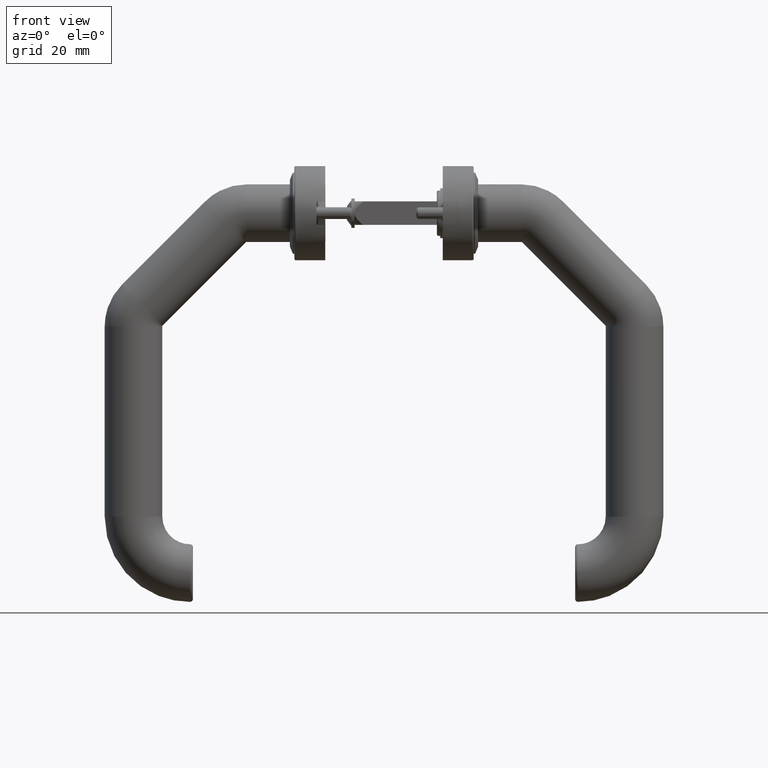
[diagram: clean part render]
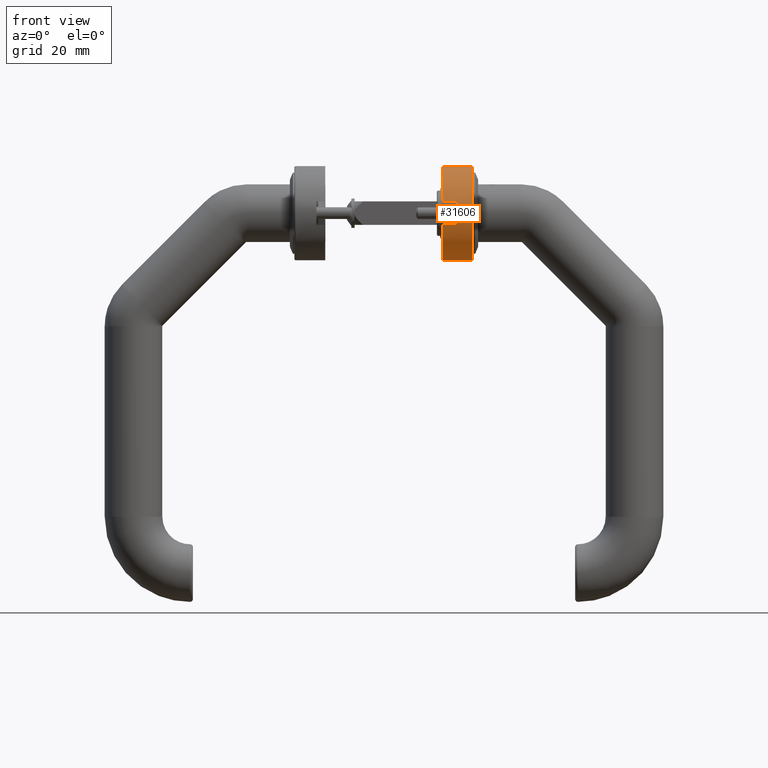
[diagram: same view with one face highlighted and labeled with its STEP entity id]
A machine part, front view. The second image highlights one B-rep face of the part: STEP entity #31606.
In plain terms, the highlighted cylindrical surface (partial cylindrical patch) has radius 16 mm, axis along (1, -0, -0).
Its self-contained STEP definition (entity closure, byte-faithful):
#2670 = CARTESIAN_POINT ( 'NONE',  ( 4.000000000000000000, -30.49193338482968230, -5.499999999999997335 ) ) ;
#2783 = DIRECTION ( 'NONE',  ( 1.000000000000000000, 0.000000000000000000, 0.000000000000000000 ) ) ;
#3510 = ORIENTED_EDGE ( 'NONE', *, *, #5690, .F. ) ;
#4168 = AXIS2_PLACEMENT_3D ( 'NONE', #21442, #20978, #10694 ) ;
#4494 = VECTOR ( 'NONE', #21200, 1000.000000000000000 ) ;
#4990 = CARTESIAN_POINT ( 'NONE',  ( 16.00000000000000711, -15.00000000000000000, -0.5000000000000038858 ) ) ;
#5690 = EDGE_CURVE ( 'NONE', #19910, #19101, #14931, .T. ) ;
#6109 = ORIENTED_EDGE ( 'NONE', *, *, #42259, .T. ) ;
#6133 = DIRECTION ( 'NONE',  ( 0.000000000000000000, 0.000000000000000000, 1.000000000000000000 ) ) ;
#8200 = VERTEX_POINT ( 'NONE', #19783 ) ;
#8274 = ORIENTED_EDGE ( 'NONE', *, *, #36921, .T. ) ;
#9048 = CARTESIAN_POINT ( 'NONE',  ( 16.00000000000000711, -15.00000000000000000, -10.50000000000000000 ) ) ;
#9219 = FACE_OUTER_BOUND ( 'NONE', #13501, .T. ) ;
#9381 = DIRECTION ( 'NONE',  ( 1.000000000000000000, 0.000000000000000000, 0.000000000000000000 ) ) ;
#9682 = CARTESIAN_POINT ( 'NONE',  ( -4.000000000000000000, -30.49193338482967874, -10.50000000000000000 ) ) ;
#10653 = CIRCLE ( 'NONE', #32849, 16.00000000000001066 ) ;
#10694 = DIRECTION ( 'NONE',  ( 1.000000000000000000, 0.000000000000000000, 0.000000000000000000 ) ) ;
#11129 = ORIENTED_EDGE ( 'NONE', *, *, #14301, .F. ) ;
#13302 = AXIS2_PLACEMENT_3D ( 'NONE', #41659, #45438, #23801 ) ;
#13501 = EDGE_LOOP ( 'NONE', ( #3510, #35665, #28068, #6109, #22443, #8274, #30101, #11129 ) ) ;
#14148 = CARTESIAN_POINT ( 'NONE',  ( -4.000000000000000000, -30.49193338482968230, -5.499999999999997335 ) ) ;
#14301 = EDGE_CURVE ( 'NONE', #19101, #15563, #40440, .T. ) ;
#14931 = LINE ( 'NONE', #24035, #32466 ) ;
#15561 = CARTESIAN_POINT ( 'NONE',  ( -4.000000000000000000, -30.49193338482968230, -10.50000000000000000 ) ) ;
#15563 = VERTEX_POINT ( 'NONE', #14148 ) ;
#15576 = AXIS2_PLACEMENT_3D ( 'NONE', #24442, #20509, #38533 ) ;
#16168 = DIRECTION ( 'NONE',  ( 0.000000000000000000, 0.000000000000000000, 1.000000000000000000 ) ) ;
#16405 = CIRCLE ( 'NONE', #28531, 16.00000000000001066 ) ;
#16492 = DIRECTION ( 'NONE',  ( 0.000000000000000000, 0.000000000000000000, 1.000000000000000000 ) ) ;
#16803 = CARTESIAN_POINT ( 'NONE',  ( -2.563635327559615436E-15, -15.00000000000000000, -10.50000000000000000 ) ) ;
#18542 = CARTESIAN_POINT ( 'NONE',  ( 4.000000000000000000, -30.49193338482968230, -10.50000000000000000 ) ) ;
#18722 = EDGE_CURVE ( 'NONE', #39811, #8200, #43780, .T. ) ;
#19101 = VERTEX_POINT ( 'NONE', #2670 ) ;
#19338 = CARTESIAN_POINT ( 'NONE',  ( -16.00000000000000711, -15.00000000000000178, -10.50000000000000000 ) ) ;
#19783 = CARTESIAN_POINT ( 'NONE',  ( -16.00000000000000711, -15.00000000000000178, -0.5000000000000038858 ) ) ;
#19910 = VERTEX_POINT ( 'NONE', #18542 ) ;
#20509 = DIRECTION ( 'NONE',  ( -0.000000000000000000, -0.000000000000000000, -1.000000000000000000 ) ) ;
#20978 = DIRECTION ( 'NONE',  ( -0.000000000000000000, -0.000000000000000000, -1.000000000000000000 ) ) ;
#21200 = DIRECTION ( 'NONE',  ( -0.000000000000000000, -0.000000000000000000, -1.000000000000000000 ) ) ;
#21442 = CARTESIAN_POINT ( 'NONE',  ( -2.563635327559615436E-15, -15.00000000000000000, -5.499999999999997335 ) ) ;
#22443 = ORIENTED_EDGE ( 'NONE', *, *, #18722, .F. ) ;
#22559 = VERTEX_POINT ( 'NONE', #15561 ) ;
#23801 = DIRECTION ( 'NONE',  ( 1.000000000000000000, 0.000000000000000000, 0.000000000000000000 ) ) ;
#24035 = CARTESIAN_POINT ( 'NONE',  ( 4.000000000000000000, -30.49193338482967874, -10.50000000000000000 ) ) ;
#24407 = CARTESIAN_POINT ( 'NONE',  ( -2.563635327559615436E-15, -15.00000000000000000, -10.50000000000000000 ) ) ;
#24442 = CARTESIAN_POINT ( 'NONE',  ( -2.563635327559615436E-15, -15.00000000000000000, -0.5000000000000004441 ) ) ;
#24930 = VERTEX_POINT ( 'NONE', #4990 ) ;
#27100 = LINE ( 'NONE', #9048, #37859 ) ;
#27936 = VERTEX_POINT ( 'NONE', #33015 ) ;
#28068 = ORIENTED_EDGE ( 'NONE', *, *, #41849, .T. ) ;
#28188 = CARTESIAN_POINT ( 'NONE',  ( -16.00000000000000711, -15.00000000000000178, -10.50000000000000000 ) ) ;
#28531 = AXIS2_PLACEMENT_3D ( 'NONE', #16803, #16168, #9381 ) ;
#28800 = CIRCLE ( 'NONE', #15576, 16.00000000000001066 ) ;
#30101 = ORIENTED_EDGE ( 'NONE', *, *, #37009, .F. ) ;
#31606 = ADVANCED_FACE ( 'NONE', ( #9219 ), #32359, .T. ) ;
#32359 = CYLINDRICAL_SURFACE ( 'NONE', #13302, 16.00000000000001066 ) ;
#32466 = VECTOR ( 'NONE', #38578, 1000.000000000000000 ) ;
#32849 = AXIS2_PLACEMENT_3D ( 'NONE', #24407, #6133, #2783 ) ;
#33015 = CARTESIAN_POINT ( 'NONE',  ( 16.00000000000000711, -15.00000000000000000, -10.50000000000000000 ) ) ;
#35665 = ORIENTED_EDGE ( 'NONE', *, *, #44466, .T. ) ;
#36921 = EDGE_CURVE ( 'NONE', #39811, #22559, #16405, .T. ) ;
#37009 = EDGE_CURVE ( 'NONE', #15563, #22559, #45168, .T. ) ;
#37859 = VECTOR ( 'NONE', #45050, 1000.000000000000000 ) ;
#38533 = DIRECTION ( 'NONE',  ( 1.000000000000000000, 0.000000000000000000, 0.000000000000000000 ) ) ;
#38578 = DIRECTION ( 'NONE',  ( 0.000000000000000000, 0.000000000000000000, 1.000000000000000000 ) ) ;
#39811 = VERTEX_POINT ( 'NONE', #28188 ) ;
#40440 = CIRCLE ( 'NONE', #4168, 16.00000000000001066 ) ;
#41659 = CARTESIAN_POINT ( 'NONE',  ( -2.563635327559615436E-15, -15.00000000000000000, -10.50000000000000000 ) ) ;
#41849 = EDGE_CURVE ( 'NONE', #27936, #24930, #27100, .T. ) ;
#42259 = EDGE_CURVE ( 'NONE', #24930, #8200, #28800, .T. ) ;
#43780 = LINE ( 'NONE', #19338, #46052 ) ;
#44466 = EDGE_CURVE ( 'NONE', #19910, #27936, #10653, .T. ) ;
#45050 = DIRECTION ( 'NONE',  ( 0.000000000000000000, 0.000000000000000000, 1.000000000000000000 ) ) ;
#45168 = LINE ( 'NONE', #9682, #4494 ) ;
#45438 = DIRECTION ( 'NONE',  ( 0.000000000000000000, 0.000000000000000000, 1.000000000000000000 ) ) ;
#46052 = VECTOR ( 'NONE', #16492, 1000.000000000000000 ) ;